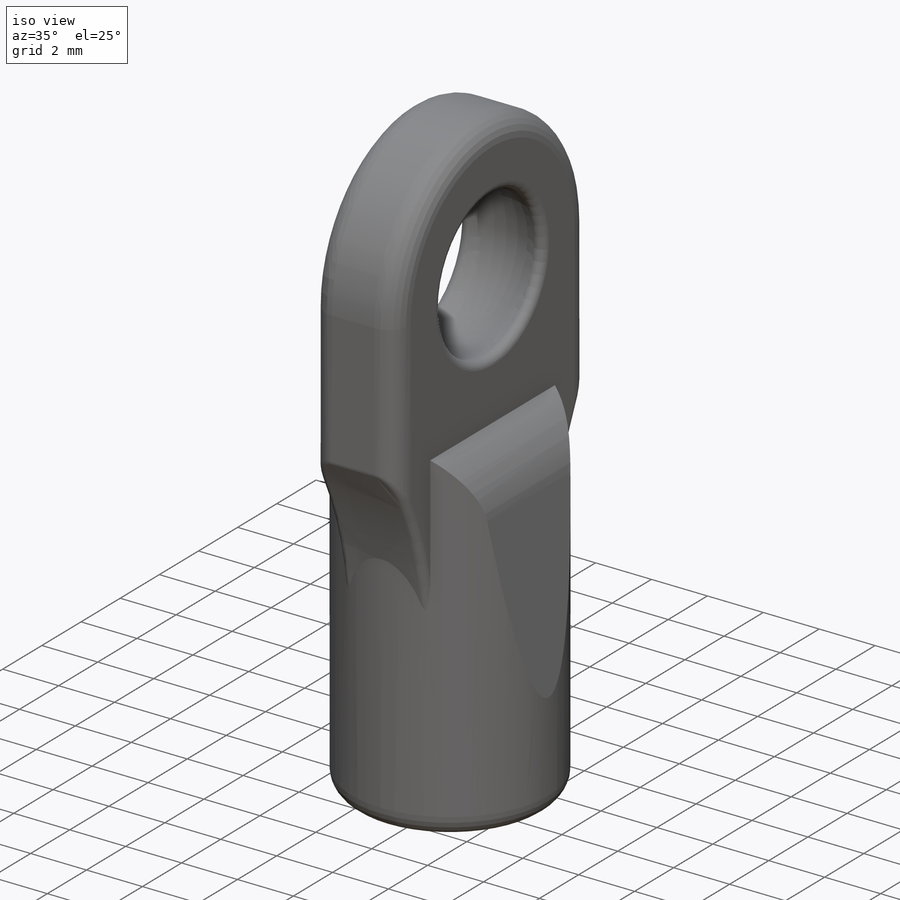
[diagram: iso view]
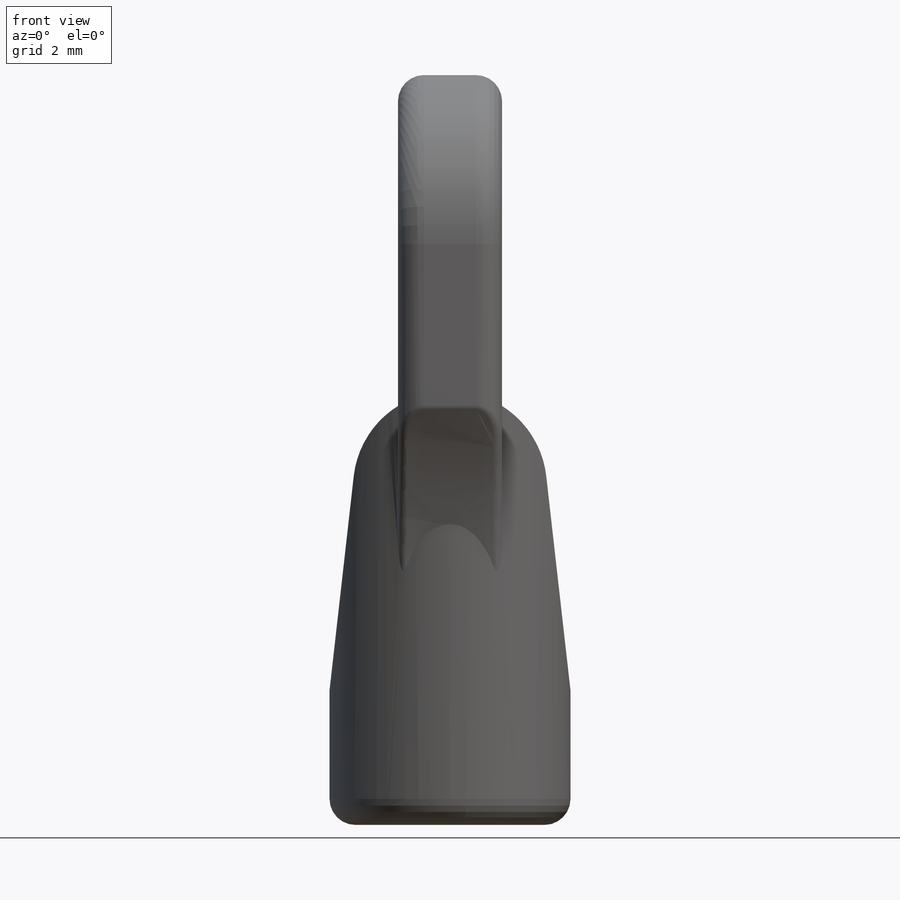
[diagram: front view]
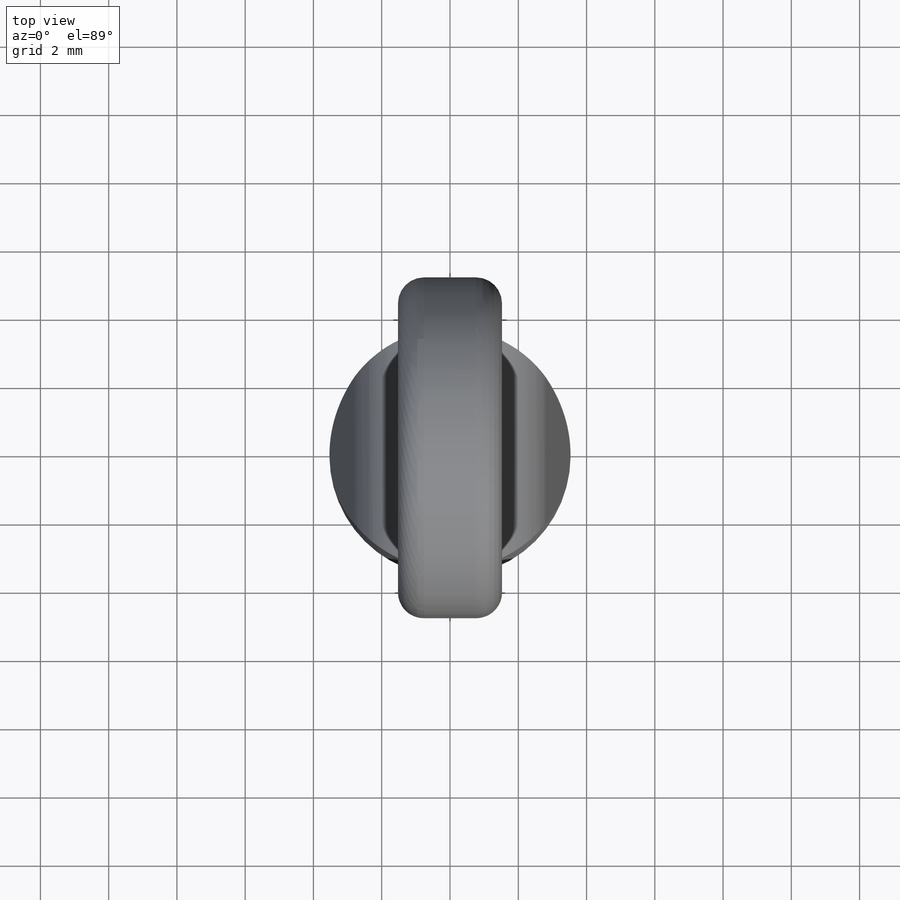
[diagram: top view]
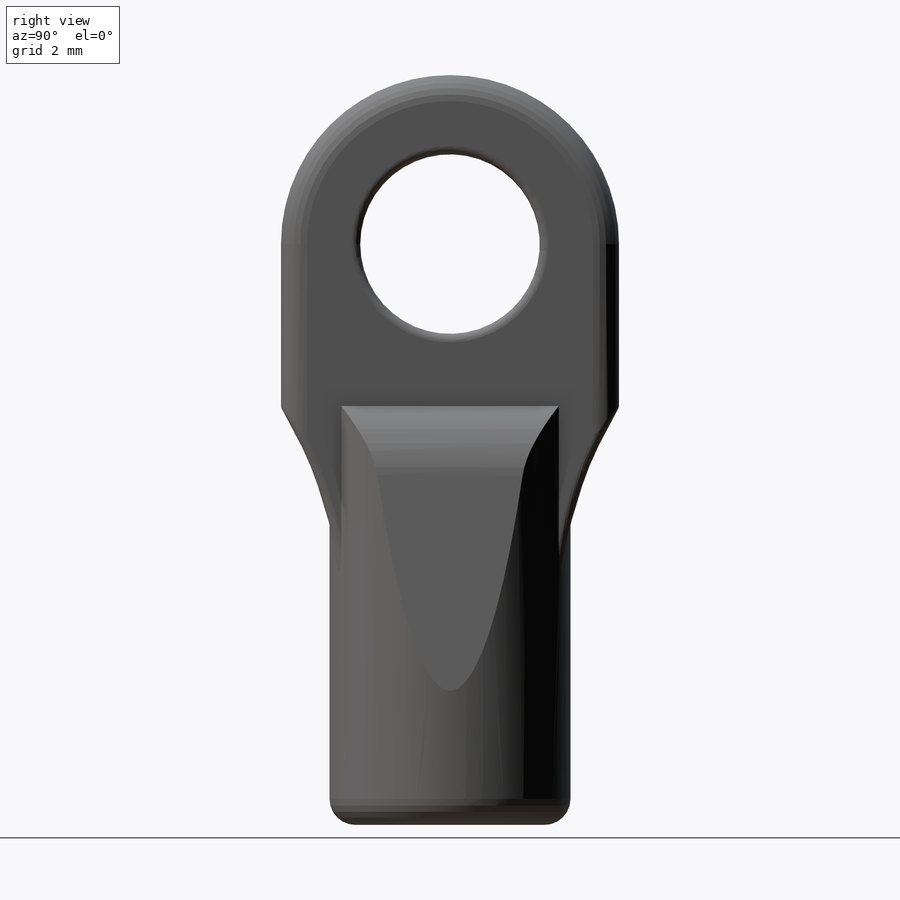
[diagram: right view]
SOLIDWORKS PART (.sldprt)
format: sldprt  version: not decoded by parser v0  size: 368,640 bytes
history: native  units: mm
features: sketch x5, fillet x4, extrude x3, material x1, cut_extrude x1, cut_revolve x1 (+13 scaffold rows collapsed)
feature tree (28):
  scaffold x13  (default folders/planes/origin — collapsed)
  material  "Material <not specified>"
  sketch  "Sketch1"  dims[D1=3.6322mm D2=7.0612mm]
  extrude  "Boss-Extrude1"  Depth=12.7mm
  sketch  "Sketch2"  dims[D1=3.937mm D2=5.08mm]
  cut_extrude  "Cut-Extrude1"  [1 undecoded]
  sketch  "Sketch3"
  extrude  "Boss-Extrude2"  Depth=2.54mm
  fillet  "Fillet1"  Radius=2.794mm
  sketch  "Sketch4"  dims[D1=9.906mm D2=6.35mm D3=21.971mm D4=6.35mm D5=~12.233197mm]
  extrude  "Boss-Extrude3"  Depth=1.524mm
  fillet  "Fillet2"  Radius=0.762mm
  fillet  "Fillet3"  Radius=0.254mm
  sketch  "Sketch5"  dims[D1=2.8956mm]
  cut_revolve  "Cut-Revolve1"  Angle=360deg
  fillet  "Fillet4"  Radius=0.254mm
decode coverage: 12 of 14 modeling features carry decoded parameters
note: ~ marks probable driven/reference dimensions
note: 1 parameter value undecoded
note: suppression state not decoded; provenance and decode notes live in map.json
